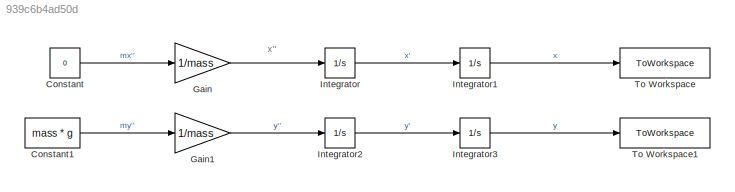
MODEL slx_939c6b4ad50d
KIND model
CONFIG AbsTol = auto
CONFIG EnableMultiTasking = off
CONFIG FixedStep = auto
CONFIG MaxStep = auto
CONFIG MinStep = auto
CONFIG RelTol = 1e-3
CONFIG SampleTimeConstraint = Unconstrained
CONFIG SolverName = VariableStepAuto
CONFIG StartTime = 0.0
CONFIG StopTime = time_end
BLOCK [Constant] Constant
  Value = 0
BLOCK [Constant] Constant1
  Value = mass * g
BLOCK [Gain] Gain
  Gain = 1/mass
BLOCK [Gain] Gain1
  Gain = 1/mass
BLOCK [Integrator] Integrator
  InitialCondition = v0_x
  Ports = [1, 1]
BLOCK [Integrator] Integrator1
  Ports = [1, 1]
BLOCK [Integrator] Integrator2
  InitialCondition = v0_y
  Ports = [1, 1]
BLOCK [Integrator] Integrator3
  Ports = [1, 1]
BLOCK [ToWorkspace] To Workspace
  FixptAsFi = on
  MaxDataPoints = inf
  Ports = [1]
  SampleTime = -1
  SaveFormat = Timeseries
  VariableName = xOut
BLOCK [ToWorkspace] To Workspace1
  FixptAsFi = on
  MaxDataPoints = inf
  Ports = [1]
  SampleTime = -1
  SaveFormat = Timeseries
  VariableName = yOut
ANNOTATION (root): x''
LINE Constant1:1 -> Gain1:1
LINE Constant:1 -> Gain:1
LINE Gain1:1 -> Integrator2:1
LINE Gain:1 -> Integrator:1
LINE Integrator1:1 -> To Workspace:1
LINE Integrator2:1 -> Integrator3:1
LINE Integrator3:1 -> To Workspace1:1
LINE Integrator:1 -> Integrator1:1
